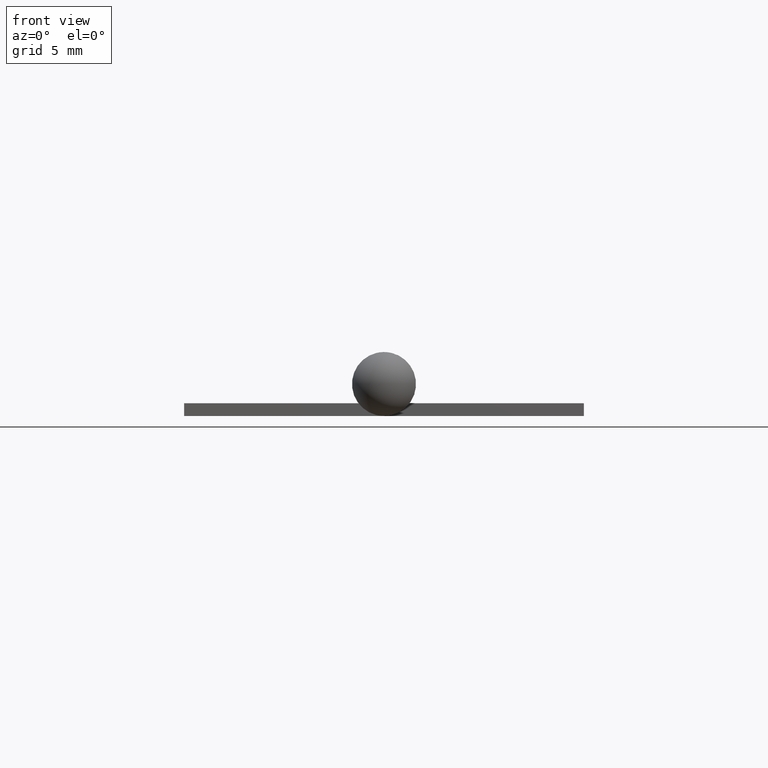
[diagram: clean part render]
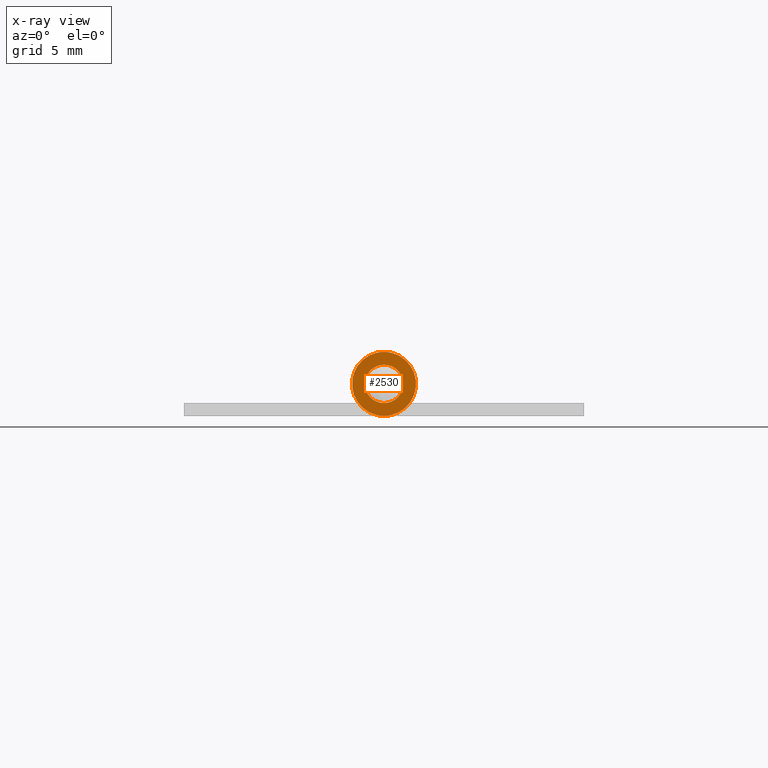
[diagram: x-ray — body ghosted, one internal face saturated and labeled with its STEP entity id]
A machine part, front view, then the same camera in x-ray: the body is ghosted and one INTERNAL B-rep face — a face not visible from any outside direction — is saturated and labeled: STEP entity #2530.
In plain terms, the highlighted planar face has unit normal (0, 1, 0).
Its self-contained STEP definition (entity closure, byte-faithful):
#150 = EDGE_LOOP ( 'NONE', ( #5724 ) ) ;
#384 = PLANE ( 'NONE',  #1269 ) ;
#792 = EDGE_LOOP ( 'NONE', ( #5642 ) ) ;
#836 = CARTESIAN_POINT ( 'NONE',  ( 0.000000000000000000, -17.55000000000000071, 0.000000000000000000 ) ) ;
#1108 = FACE_OUTER_BOUND ( 'NONE', #150, .T. ) ;
#1171 = DIRECTION ( 'NONE',  ( -0.000000000000000000, 1.000000000000000000, 0.000000000000000000 ) ) ;
#1269 = AXIS2_PLACEMENT_3D ( 'NONE', #5905, #1171, #6694 ) ;
#1403 = AXIS2_PLACEMENT_3D ( 'NONE', #836, #1620, #5620 ) ;
#1620 = DIRECTION ( 'NONE',  ( -0.000000000000000000, 1.000000000000000000, -0.000000000000000000 ) ) ;
#2530 = ADVANCED_FACE ( 'NONE', ( #7147, #1108 ), #384, .T. ) ;
#3526 = CIRCLE ( 'NONE', #1403, 1.199999999999999956 ) ;
#3814 = EDGE_CURVE ( 'NONE', #4764, #4764, #3526, .T. ) ;
#4404 = AXIS2_PLACEMENT_3D ( 'NONE', #10189, #8544, #7769 ) ;
#4764 = VERTEX_POINT ( 'NONE', #6134 ) ;
#5238 = CARTESIAN_POINT ( 'NONE',  ( 0.000000000000000000, -17.55000000000000071, -1.999999999999995781 ) ) ;
#5620 = DIRECTION ( 'NONE',  ( 0.000000000000000000, 0.000000000000000000, 1.000000000000000000 ) ) ;
#5642 = ORIENTED_EDGE ( 'NONE', *, *, #3814, .F. ) ;
#5724 = ORIENTED_EDGE ( 'NONE', *, *, #8460, .F. ) ;
#5806 = VERTEX_POINT ( 'NONE', #5238 ) ;
#5905 = CARTESIAN_POINT ( 'NONE',  ( 2.000000000000000000, -17.55000000000000071, 0.000000000000000000 ) ) ;
#6134 = CARTESIAN_POINT ( 'NONE',  ( 0.000000000000000000, -17.55000000000000071, 1.199999999999999956 ) ) ;
#6694 = DIRECTION ( 'NONE',  ( 0.000000000000000000, 0.000000000000000000, -1.000000000000000000 ) ) ;
#6935 = CIRCLE ( 'NONE', #4404, 1.999999999999995781 ) ;
#7147 = FACE_BOUND ( 'NONE', #792, .T. ) ;
#7769 = DIRECTION ( 'NONE',  ( 0.000000000000000000, 0.000000000000000000, -1.000000000000000000 ) ) ;
#8460 = EDGE_CURVE ( 'NONE', #5806, #5806, #6935, .T. ) ;
#8544 = DIRECTION ( 'NONE',  ( 0.000000000000000000, -1.000000000000000000, 0.000000000000000000 ) ) ;
#10189 = CARTESIAN_POINT ( 'NONE',  ( 0.000000000000000000, -17.55000000000000071, 0.000000000000000000 ) ) ;